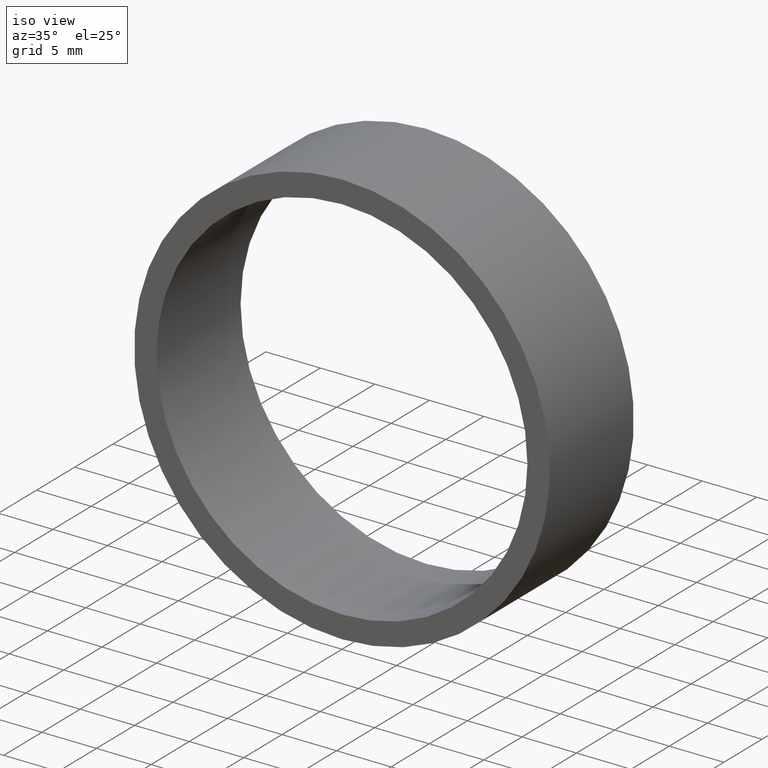
[diagram: clean part render]
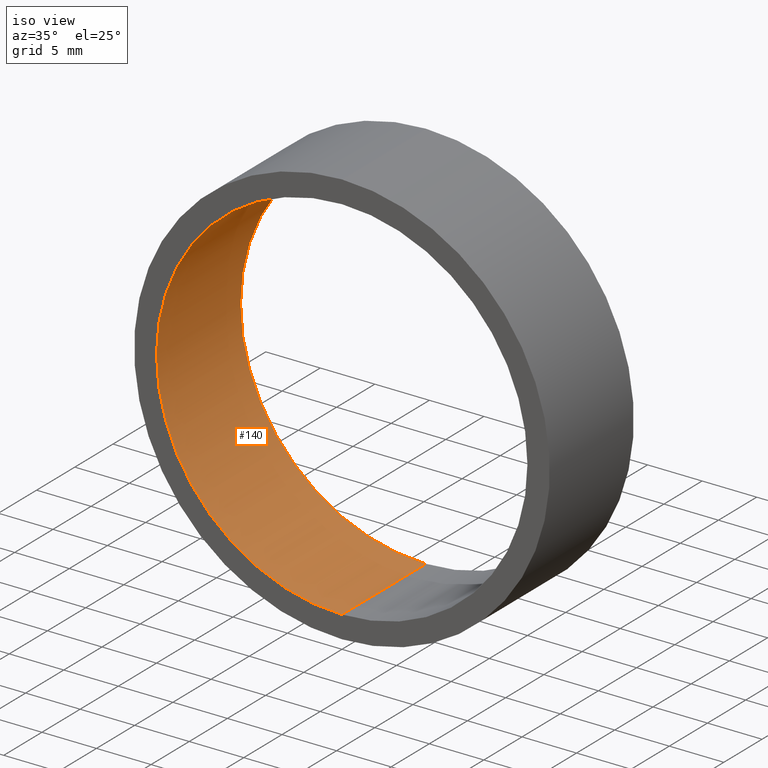
[diagram: same view with one face highlighted and labeled with its STEP entity id]
A machine part, iso view. The second image highlights one B-rep face of the part: STEP entity #140.
In plain terms, the highlighted cylindrical surface (partial cylindrical patch) has radius 17 mm, axis along (-0, -1, -0).
Its self-contained STEP definition (entity closure, byte-faithful):
#4 = VERTEX_POINT ( 'NONE', #63 ) ;
#7 = VERTEX_POINT ( 'NONE', #48 ) ;
#9 = EDGE_LOOP ( 'NONE', ( #222, #180, #197, #87 ) ) ;
#18 = AXIS2_PLACEMENT_3D ( 'NONE', #213, #85, #67 ) ;
#19 = CIRCLE ( 'NONE', #18, 17.00000000000000000 ) ;
#38 = LINE ( 'NONE', #111, #98 ) ;
#48 = CARTESIAN_POINT ( 'NONE',  ( 2.081899558550500300E-015, 11.00000000000000000, 17.00000000000000000 ) ) ;
#55 = EDGE_CURVE ( 'NONE', #4, #7, #142, .T. ) ;
#59 = VECTOR ( 'NONE', #203, 1000.000000000000000 ) ;
#62 = CARTESIAN_POINT ( 'NONE',  ( 0.0000000000000000000, 11.00000000000000000, 0.0000000000000000000 ) ) ;
#63 = CARTESIAN_POINT ( 'NONE',  ( 0.0000000000000000000, 11.00000000000000000, -17.00000000000000000 ) ) ;
#67 = DIRECTION ( 'NONE',  ( 0.0000000000000000000, 0.0000000000000000000, 1.000000000000000000 ) ) ;
#72 = CARTESIAN_POINT ( 'NONE',  ( 2.081899558550500300E-015, 11.00000000000000000, 17.00000000000000000 ) ) ;
#85 = DIRECTION ( 'NONE',  ( 0.0000000000000000000, 1.000000000000000000, 0.0000000000000000000 ) ) ;
#86 = DIRECTION ( 'NONE',  ( -0.0000000000000000000, -1.000000000000000000, -0.0000000000000000000 ) ) ;
#87 = ORIENTED_EDGE ( 'NONE', *, *, #239, .F. ) ;
#98 = VECTOR ( 'NONE', #214, 1000.000000000000000 ) ;
#111 = CARTESIAN_POINT ( 'NONE',  ( 0.0000000000000000000, 11.00000000000000000, -17.00000000000000000 ) ) ;
#121 = CARTESIAN_POINT ( 'NONE',  ( 0.0000000000000000000, 0.0000000000000000000, -17.00000000000000000 ) ) ;
#137 = AXIS2_PLACEMENT_3D ( 'NONE', #167, #86, #150 ) ;
#140 = ADVANCED_FACE ( 'NONE', ( #187 ), #163, .F. ) ;
#142 = CIRCLE ( 'NONE', #154, 17.00000000000000000 ) ;
#145 = CARTESIAN_POINT ( 'NONE',  ( 2.081899558550500300E-015, 0.0000000000000000000, 17.00000000000000000 ) ) ;
#150 = DIRECTION ( 'NONE',  ( 0.0000000000000000000, 0.0000000000000000000, -1.000000000000000000 ) ) ;
#154 = AXIS2_PLACEMENT_3D ( 'NONE', #62, #231, #236 ) ;
#156 = VERTEX_POINT ( 'NONE', #121 ) ;
#163 = CYLINDRICAL_SURFACE ( 'NONE', #137, 17.00000000000000000 ) ;
#167 = CARTESIAN_POINT ( 'NONE',  ( 0.0000000000000000000, 11.00000000000000000, 0.0000000000000000000 ) ) ;
#180 = ORIENTED_EDGE ( 'NONE', *, *, #193, .T. ) ;
#187 = FACE_OUTER_BOUND ( 'NONE', #9, .T. ) ;
#193 = EDGE_CURVE ( 'NONE', #7, #229, #211, .T. ) ;
#197 = ORIENTED_EDGE ( 'NONE', *, *, #204, .F. ) ;
#203 = DIRECTION ( 'NONE',  ( -0.0000000000000000000, -1.000000000000000000, -0.0000000000000000000 ) ) ;
#204 = EDGE_CURVE ( 'NONE', #156, #229, #19, .T. ) ;
#211 = LINE ( 'NONE', #72, #59 ) ;
#213 = CARTESIAN_POINT ( 'NONE',  ( 0.0000000000000000000, 0.0000000000000000000, 0.0000000000000000000 ) ) ;
#214 = DIRECTION ( 'NONE',  ( -0.0000000000000000000, -1.000000000000000000, -0.0000000000000000000 ) ) ;
#222 = ORIENTED_EDGE ( 'NONE', *, *, #55, .T. ) ;
#229 = VERTEX_POINT ( 'NONE', #145 ) ;
#231 = DIRECTION ( 'NONE',  ( 0.0000000000000000000, 1.000000000000000000, 0.0000000000000000000 ) ) ;
#236 = DIRECTION ( 'NONE',  ( 0.0000000000000000000, 0.0000000000000000000, 1.000000000000000000 ) ) ;
#239 = EDGE_CURVE ( 'NONE', #4, #156, #38, .T. ) ;